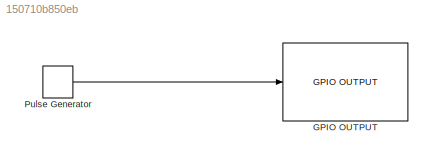
MODEL slx_150710b850eb
KIND model
CONFIG AbsTol = auto
CONFIG EnableMultiTasking = off
CONFIG FixedStep = auto
CONFIG MaxStep = auto
CONFIG MinStep = auto
CONFIG RelTol = 1e-3
CONFIG SampleTimeConstraint = Unconstrained
CONFIG SolverName = FixedStepAuto
CONFIG StartTime = 0.0
CONFIG StopTime = 10.0
BLOCK [Reference] GPIO OUTPUT  REF=peripheral_library_blocks_am263x/GPIO OUTPUT
  SourceBlock = peripheral_library_blocks_am263x/GPIO OUTPUT
  SourceType = GPIO_OUT_AM263X
BLOCK [DiscretePulseGenerator] Pulse Generator
  Period = 1
  PulseType = Time based
  PulseWidth = 5
LINE Pulse Generator:1 -> GPIO OUTPUT:1
